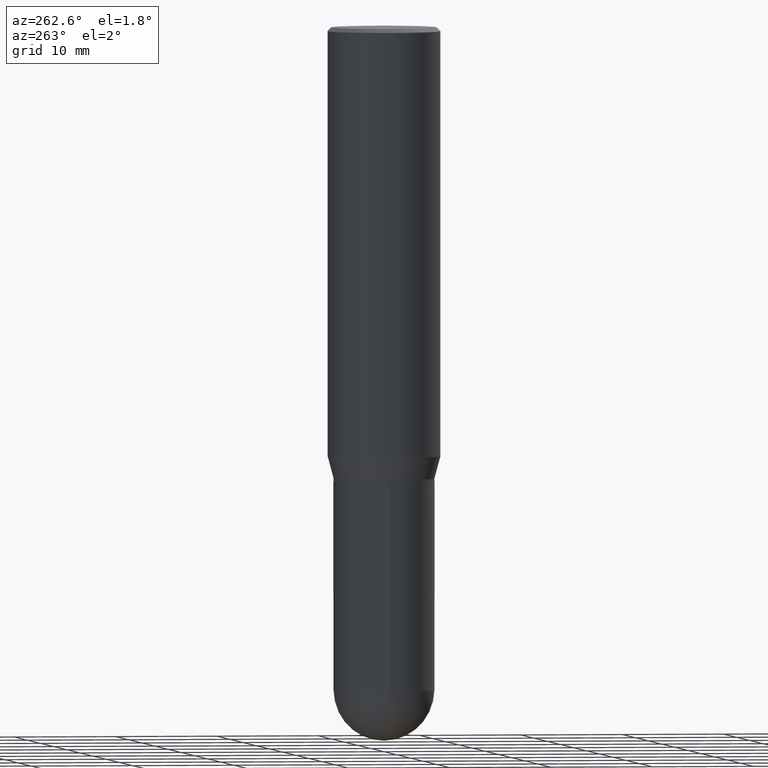
[diagram: clean part render]
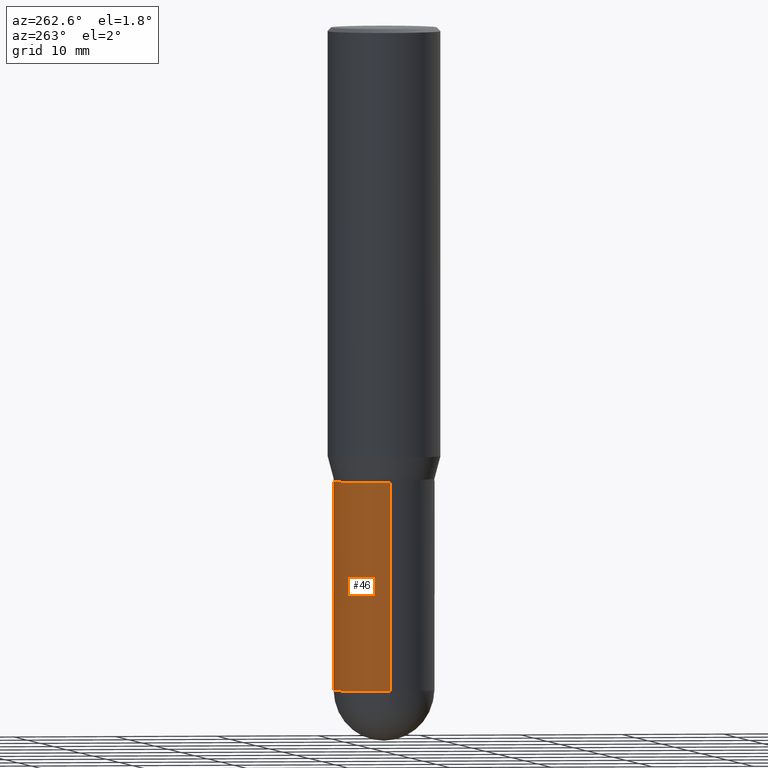
[diagram: same view with one face highlighted and labeled with its STEP entity id]
A machine part, auxiliary view. The second image highlights one B-rep face of the part: STEP entity #46.
In plain terms, the highlighted cylindrical surface (partial cylindrical patch) has radius 4.9606 mm, axis along (-0, 0, 1).
Its self-contained STEP definition (entity closure, byte-faithful):
#14 = ORIENTED_EDGE ( 'NONE', *, *, #76, .T. ) ;
#35 = EDGE_CURVE ( 'NONE', #318, #336, #225, .T. ) ;
#46 = ADVANCED_FACE ( 'NONE', ( #183 ), #338, .T. ) ;
#67 = ORIENTED_EDGE ( 'NONE', *, *, #417, .T. ) ;
#75 = VERTEX_POINT ( 'NONE', #275 ) ;
#76 = EDGE_CURVE ( 'NONE', #101, #151, #370, .T. ) ;
#83 = CIRCLE ( 'NONE', #314, 0.1953000000000000569 ) ;
#93 = DIRECTION ( 'NONE',  ( -2.445468806185136877E-29, 3.491481338843145188E-15, 1.000000000000000000 ) ) ;
#101 = VERTEX_POINT ( 'NONE', #401 ) ;
#130 = EDGE_CURVE ( 'NONE', #75, #336, #510, .T. ) ;
#151 = VERTEX_POINT ( 'NONE', #282 ) ;
#163 = CARTESIAN_POINT ( 'NONE',  ( 6.247439159161168638E-29, -8.919687376342582955E-15, -2.554699999999999971 ) ) ;
#164 = EDGE_LOOP ( 'NONE', ( #67, #293, #400, #333, #14 ) ) ;
#170 = CARTESIAN_POINT ( 'NONE',  ( -0.1953000000000000569, -6.127199896719566760E-15, -2.554699999999999971 ) ) ;
#183 = FACE_OUTER_BOUND ( 'NONE', #164, .T. ) ;
#200 = CARTESIAN_POINT ( 'NONE',  ( 4.279570410823988484E-29, -6.110092342975504671E-15, -1.750000000000000000 ) ) ;
#207 = VECTOR ( 'NONE', #379, 39.37007874015748143 ) ;
#209 = CARTESIAN_POINT ( 'NONE',  ( -0.1953000000000000291, -6.127199896719567549E-15, -1.750000000000000000 ) ) ;
#223 = DIRECTION ( 'NONE',  ( 1.000000000000000000, -6.982962677686266711E-15, 0.000000000000000000 ) ) ;
#225 = LINE ( 'NONE', #305, #207 ) ;
#227 = DIRECTION ( 'NONE',  ( 1.000000000000000000, -6.982962677686266711E-15, 4.876176775795935793E-29 ) ) ;
#236 = DIRECTION ( 'NONE',  ( 1.000000000000000000, -6.982962677686266711E-15, 0.000000000000000000 ) ) ;
#252 = EDGE_CURVE ( 'NONE', #101, #75, #418, .T. ) ;
#267 = CARTESIAN_POINT ( 'NONE',  ( 0.000000000000000000, 0.000000000000000000, 0.000000000000000000 ) ) ;
#273 = DIRECTION ( 'NONE',  ( 1.000000000000000000, -6.982962677686267499E-15, 0.000000000000000000 ) ) ;
#275 = CARTESIAN_POINT ( 'NONE',  ( 0.1953000000000000291, -7.473864953927632957E-15, -1.750000000000000000 ) ) ;
#282 = CARTESIAN_POINT ( 'NONE',  ( 1.363772610952190606E-15, 0.1952999999999911473, -2.554700000000000415 ) ) ;
#289 = CARTESIAN_POINT ( 'NONE',  ( 0.1953000000000000291, -1.363772610952128089E-15, 9.523173243129463579E-30 ) ) ;
#293 = ORIENTED_EDGE ( 'NONE', *, *, #35, .T. ) ;
#305 = CARTESIAN_POINT ( 'NONE',  ( -0.1953000000000000291, 1.387689962939475870E-15, -9.606680231267831797E-30 ) ) ;
#314 = AXIS2_PLACEMENT_3D ( 'NONE', #455, #502, #223 ) ;
#318 = VERTEX_POINT ( 'NONE', #170 ) ;
#333 = ORIENTED_EDGE ( 'NONE', *, *, #252, .F. ) ;
#336 = VERTEX_POINT ( 'NONE', #209 ) ;
#338 = CYLINDRICAL_SURFACE ( 'NONE', #377, 0.1953000000000000291 ) ;
#370 = CIRCLE ( 'NONE', #477, 0.1953000000000000569 ) ;
#377 = AXIS2_PLACEMENT_3D ( 'NONE', #267, #459, #227 ) ;
#379 = DIRECTION ( 'NONE',  ( -2.445468806185136877E-29, 3.491481338843145188E-15, 1.000000000000000000 ) ) ;
#400 = ORIENTED_EDGE ( 'NONE', *, *, #130, .F. ) ;
#401 = CARTESIAN_POINT ( 'NONE',  ( 0.1953000000000000569, -8.878662470611173282E-15, -2.554699999999999971 ) ) ;
#417 = EDGE_CURVE ( 'NONE', #151, #318, #83, .T. ) ;
#418 = LINE ( 'NONE', #289, #423 ) ;
#423 = VECTOR ( 'NONE', #93, 39.37007874015748143 ) ;
#444 = DIRECTION ( 'NONE',  ( -2.445468806185136597E-29, 3.491481338843145583E-15, 1.000000000000000000 ) ) ;
#452 = AXIS2_PLACEMENT_3D ( 'NONE', #200, #512, #273 ) ;
#455 = CARTESIAN_POINT ( 'NONE',  ( 6.247439159161168638E-29, -8.919687376342582955E-15, -2.554699999999999971 ) ) ;
#459 = DIRECTION ( 'NONE',  ( -2.445468806185136597E-29, 3.491481338843145583E-15, 1.000000000000000000 ) ) ;
#477 = AXIS2_PLACEMENT_3D ( 'NONE', #163, #444, #236 ) ;
#502 = DIRECTION ( 'NONE',  ( -2.445468806185136597E-29, 3.491481338843145583E-15, 1.000000000000000000 ) ) ;
#510 = CIRCLE ( 'NONE', #452, 0.1953000000000000291 ) ;
#512 = DIRECTION ( 'NONE',  ( -2.445468806185136597E-29, 3.491481338843145583E-15, 1.000000000000000000 ) ) ;